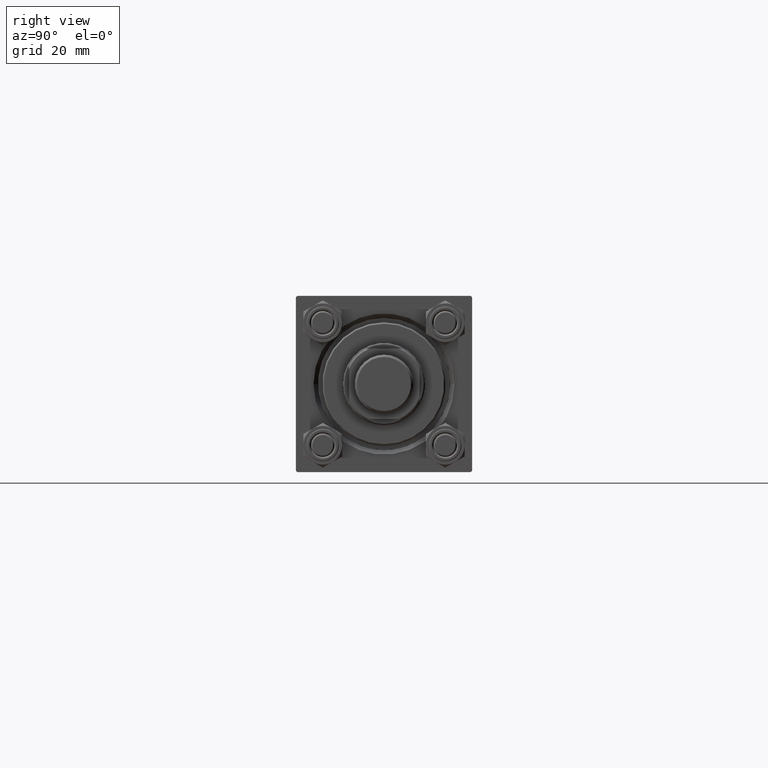
[diagram: clean part render]
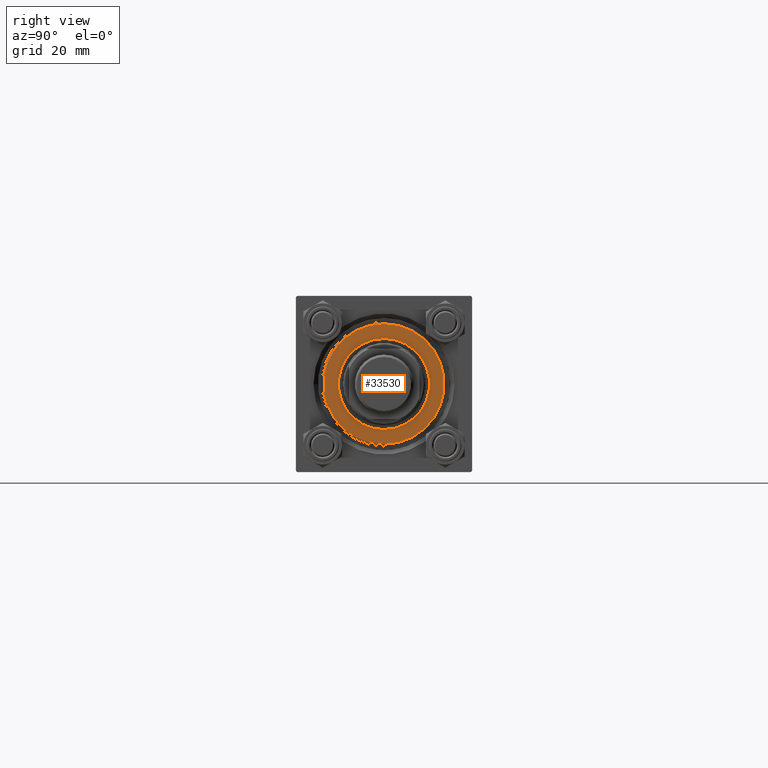
[diagram: same view with one face highlighted and labeled with its STEP entity id]
A machine part, right view. The second image highlights one B-rep face of the part: STEP entity #33530.
In plain terms, the highlighted planar face has unit normal (1, 0, 0).
Its self-contained STEP definition (entity closure, byte-faithful):
#534 = DIRECTION ( 'NONE',  ( 0.000000000000000000, 0.000000000000000000, 1.000000000000000000 ) ) ;
#986 = PLANE ( 'NONE',  #34934 ) ;
#1599 = VERTEX_POINT ( 'NONE', #13880 ) ;
#6152 = AXIS2_PLACEMENT_3D ( 'NONE', #42277, #28408, #16867 ) ;
#6156 = EDGE_CURVE ( 'NONE', #36066, #36200, #26420, .T. ) ;
#8076 = ORIENTED_EDGE ( 'NONE', *, *, #30108, .F. ) ;
#8118 = CIRCLE ( 'NONE', #12646, 15.50000000000000000 ) ;
#12646 = AXIS2_PLACEMENT_3D ( 'NONE', #45805, #27941, #35464 ) ;
#13880 = CARTESIAN_POINT ( 'NONE',  ( 15.50000000000000000, 0.000000000000000000, 40.70000000000000284 ) ) ;
#14235 = DIRECTION ( 'NONE',  ( 1.000000000000000000, 0.000000000000000000, 0.000000000000000000 ) ) ;
#15489 = EDGE_LOOP ( 'NONE', ( #8076, #21885 ) ) ;
#16867 = DIRECTION ( 'NONE',  ( 1.000000000000000000, 0.000000000000000000, 0.000000000000000000 ) ) ;
#17110 = VERTEX_POINT ( 'NONE', #33276 ) ;
#17976 = CARTESIAN_POINT ( 'NONE',  ( 0.000000000000000000, 0.000000000000000000, 40.70000000000000284 ) ) ;
#18320 = CIRCLE ( 'NONE', #23551, 20.49999999999999645 ) ;
#21885 = ORIENTED_EDGE ( 'NONE', *, *, #44742, .F. ) ;
#21946 = ORIENTED_EDGE ( 'NONE', *, *, #6156, .T. ) ;
#23551 = AXIS2_PLACEMENT_3D ( 'NONE', #31872, #32102, #14235 ) ;
#24814 = DIRECTION ( 'NONE',  ( 0.000000000000000000, 0.000000000000000000, 1.000000000000000000 ) ) ;
#25270 = FACE_BOUND ( 'NONE', #15489, .T. ) ;
#25723 = CARTESIAN_POINT ( 'NONE',  ( 0.000000000000000000, 0.000000000000000000, 40.70000000000000284 ) ) ;
#26420 = CIRCLE ( 'NONE', #6152, 20.49999999999999645 ) ;
#27941 = DIRECTION ( 'NONE',  ( 0.000000000000000000, 0.000000000000000000, 1.000000000000000000 ) ) ;
#28408 = DIRECTION ( 'NONE',  ( 0.000000000000000000, 0.000000000000000000, 1.000000000000000000 ) ) ;
#29485 = DIRECTION ( 'NONE',  ( 1.000000000000000000, 0.000000000000000000, -0.000000000000000000 ) ) ;
#30108 = EDGE_CURVE ( 'NONE', #1599, #17110, #39857, .T. ) ;
#30742 = EDGE_CURVE ( 'NONE', #36200, #36066, #18320, .T. ) ;
#31872 = CARTESIAN_POINT ( 'NONE',  ( 0.000000000000000000, 0.000000000000000000, 40.70000000000000284 ) ) ;
#32102 = DIRECTION ( 'NONE',  ( 0.000000000000000000, 0.000000000000000000, 1.000000000000000000 ) ) ;
#32401 = ORIENTED_EDGE ( 'NONE', *, *, #30742, .T. ) ;
#33276 = CARTESIAN_POINT ( 'NONE',  ( -15.50000000000000000, 1.898202538678397557E-15, 40.70000000000000284 ) ) ;
#33530 = ADVANCED_FACE ( 'NONE', ( #25270, #36541 ), #986, .T. ) ;
#34050 = CARTESIAN_POINT ( 'NONE',  ( -20.49999999999999645, 0.000000000000000000, 40.70000000000000284 ) ) ;
#34934 = AXIS2_PLACEMENT_3D ( 'NONE', #25723, #534, #29485 ) ;
#35464 = DIRECTION ( 'NONE',  ( 1.000000000000000000, 0.000000000000000000, 0.000000000000000000 ) ) ;
#36066 = VERTEX_POINT ( 'NONE', #43278 ) ;
#36200 = VERTEX_POINT ( 'NONE', #34050 ) ;
#36541 = FACE_OUTER_BOUND ( 'NONE', #44882, .T. ) ;
#39857 = CIRCLE ( 'NONE', #41990, 15.50000000000000000 ) ;
#41990 = AXIS2_PLACEMENT_3D ( 'NONE', #17976, #24814, #46213 ) ;
#42277 = CARTESIAN_POINT ( 'NONE',  ( 0.000000000000000000, 0.000000000000000000, 40.70000000000000284 ) ) ;
#43278 = CARTESIAN_POINT ( 'NONE',  ( 20.49999999999999645, 2.541142108230757480E-15, 40.70000000000000284 ) ) ;
#44742 = EDGE_CURVE ( 'NONE', #17110, #1599, #8118, .T. ) ;
#44882 = EDGE_LOOP ( 'NONE', ( #32401, #21946 ) ) ;
#45805 = CARTESIAN_POINT ( 'NONE',  ( 0.000000000000000000, 0.000000000000000000, 40.70000000000000284 ) ) ;
#46213 = DIRECTION ( 'NONE',  ( 1.000000000000000000, 0.000000000000000000, 0.000000000000000000 ) ) ;